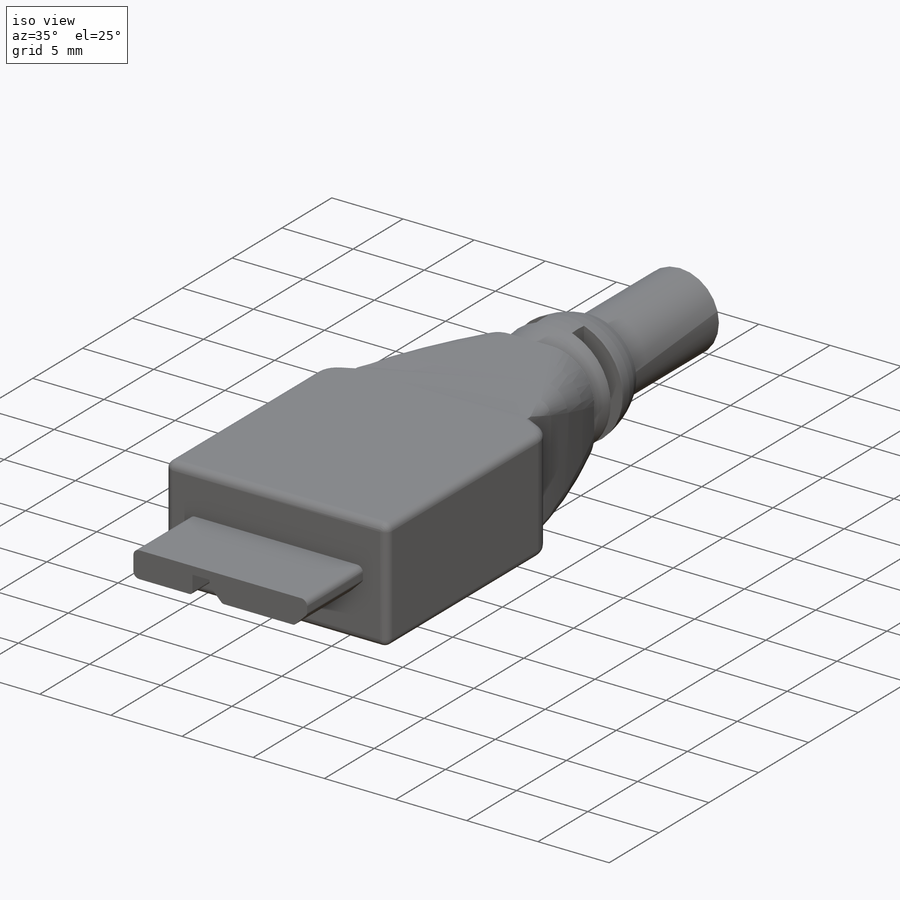
[diagram: iso view]
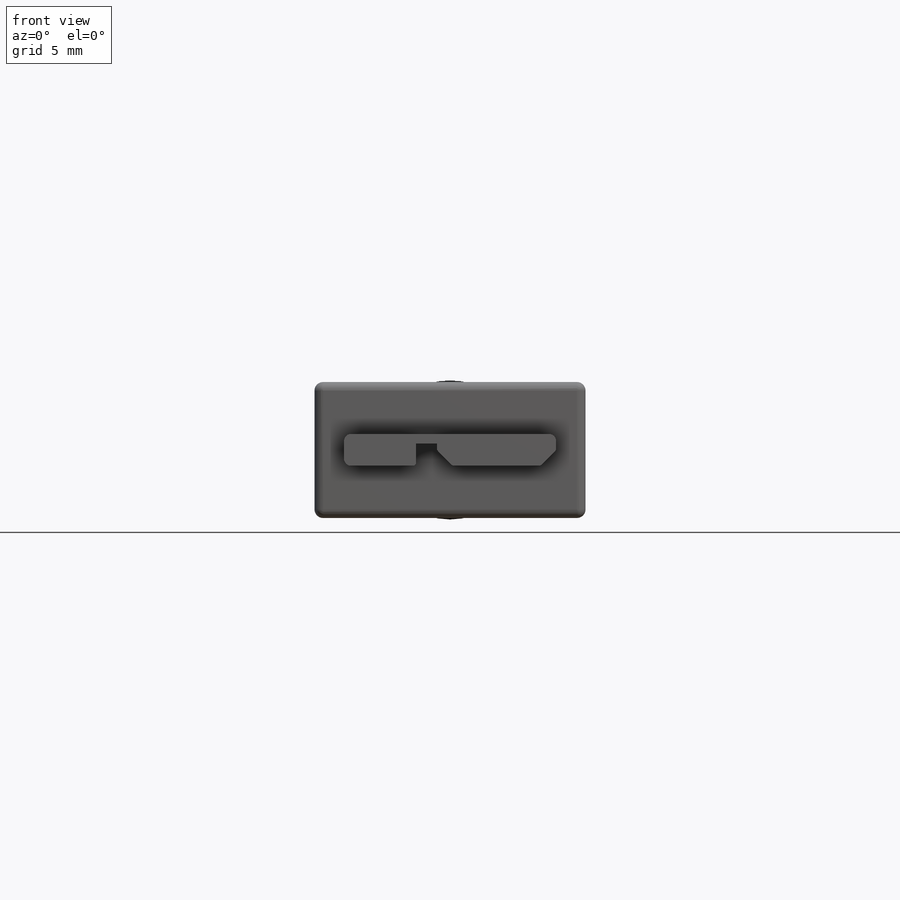
[diagram: front view]
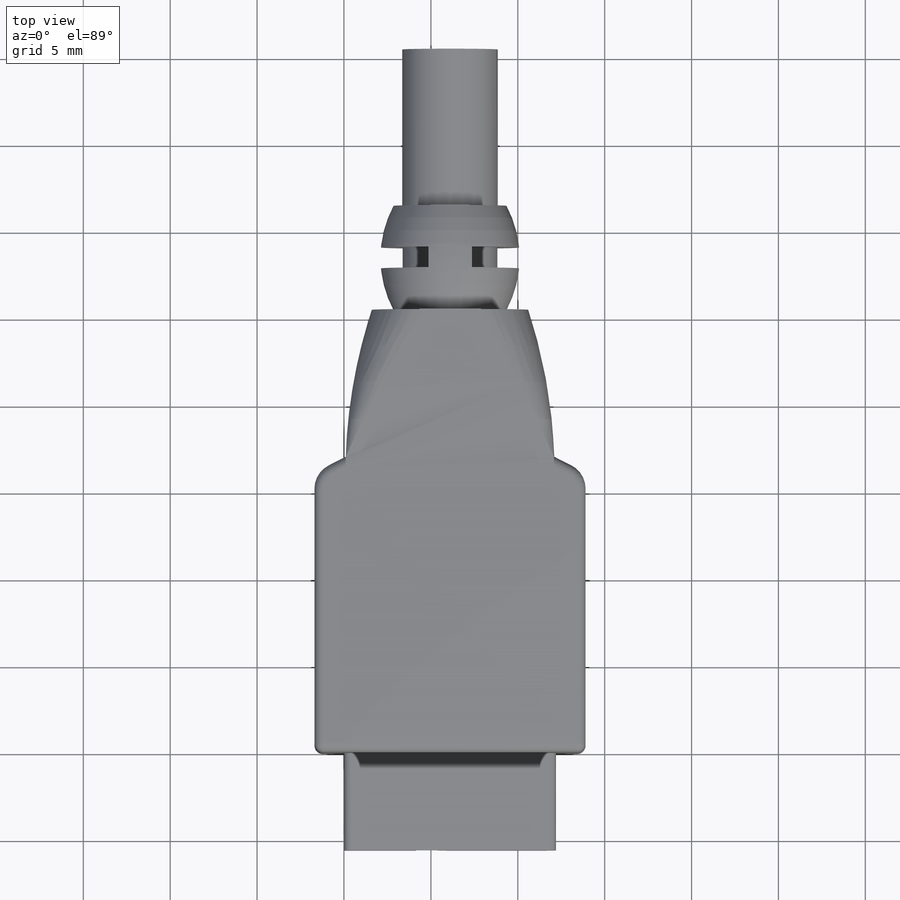
[diagram: top view]
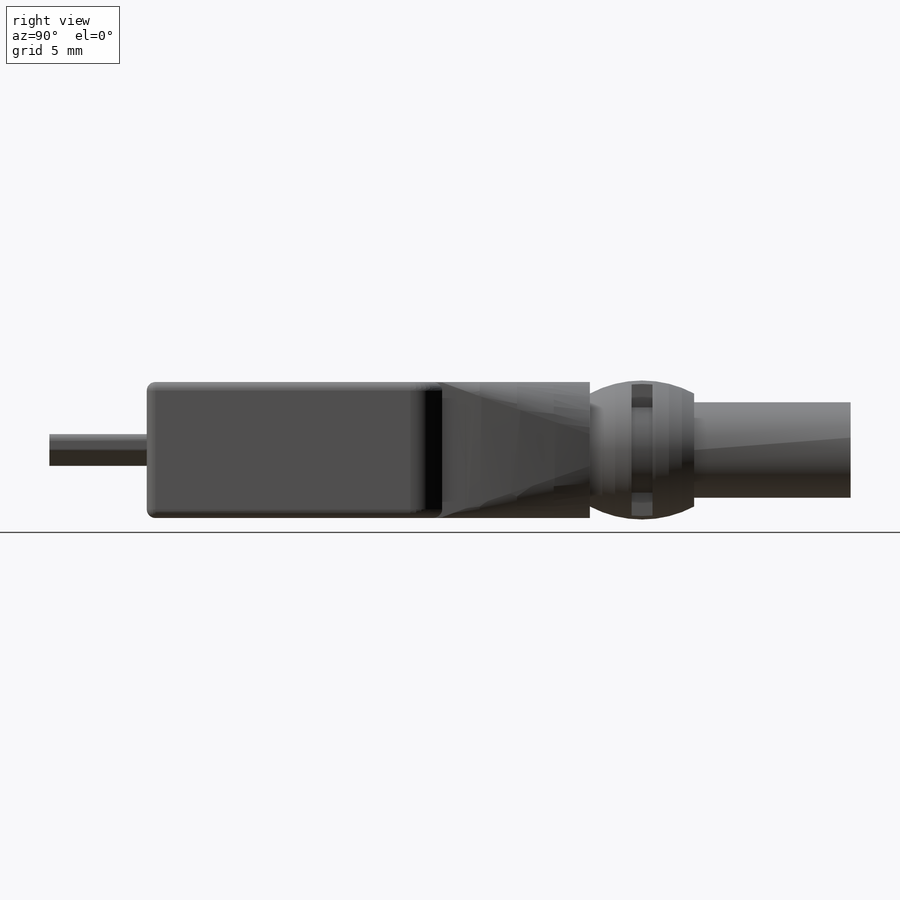
[diagram: right view]
SOLIDWORKS PART (.sldprt)
format: sldprt  version: not decoded by parser v0  size: 452,096 bytes
history: native  units: mm
features: sketch x8, fillet x4, extrude x3, plane x3, cut_extrude x2, mirror x2, material x1, revolve x1 (+11 scaffold rows collapsed)
feature tree (35):
  scaffold x11  (default folders/planes/origin — collapsed)
  material  "Material <not specified>"
  sketch  "Sketch1"  dims[c1.D1=1.83mm c1.D2=4.15mm c1.D3=6.85mm c1.D4=~0.460764mm c2.D4=135.0deg c2.D5=12.2mm c2.D6=0.55mm c2.D7=0.93mm c2.D8=0.93mm]
  extrude  "Boss-Extrude1"  Depth=5.6mm
  fillet  "Fillet1"  Radius=0.4mm
  fillet  "Fillet2"  Radius=0.2mm
  sketch  "Sketch2"  dims[D1=1.7mm D2=1.7mm D3=3.0mm D4=3.0mm D5=15.6mm D6=7.83mm]
  extrude  "Boss-Extrude2"  Depth=25.5mm
  sketch  "Sketch3"  dims[c1.D1=2.3mm c1.D2=21.5mm c1.D3=8.5mm c1.D4=12.65mm c1.D5=9.1mm c2.D1=12.0mm c2.D3=9.0mm c2.D4=1.5mm c2.D2=17.0mm]
  cut_extrude  "Cut-Extrude1"  [1 undecoded]
  fillet  "Fillet6"  Radius=1.5mm
  plane  "Plane1"
  sketch  "Sketch13"  dims[c1.D3=~7.852215mm c1.D4=6.375mm c1.D1=6.0mm c1.D2=3.25mm c2.D3=4.0mm]
  revolve  "Revolve1"  Angle=360deg
  sketch  "Sketch14"  dims[D1=3.0mm]
  plane  "Plane2"
  sketch  "Sketch15"  dims[D1=0.1mm]
  mirror  "Mirror2"
  plane  "Plane3"
  mirror  "Mirror4"
  fillet  "Fillet7"  Radius=0.5mm
  sketch  "Sketch16"  dims[D1=2.5mm D2=1.2mm D3=2.4mm D4=2.75mm]
  cut_extrude  "Cut-Extrude5"  [1 undecoded]
  sketch  "Sketch18"  dims[D1=5.5mm]
  extrude  "Boss-Extrude7"  Depth=15mm
decode coverage: 16 of 20 modeling features carry decoded parameters
note: ~ marks probable driven/reference dimensions
note: 2 parameter values undecoded
note: suppression state not decoded; provenance and decode notes live in map.json
